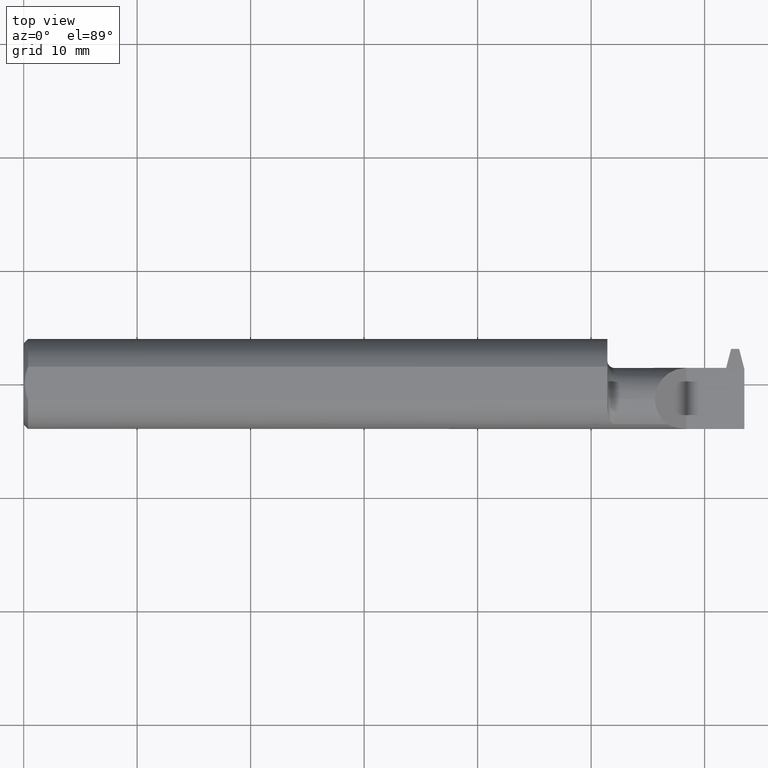
[diagram: clean part render]
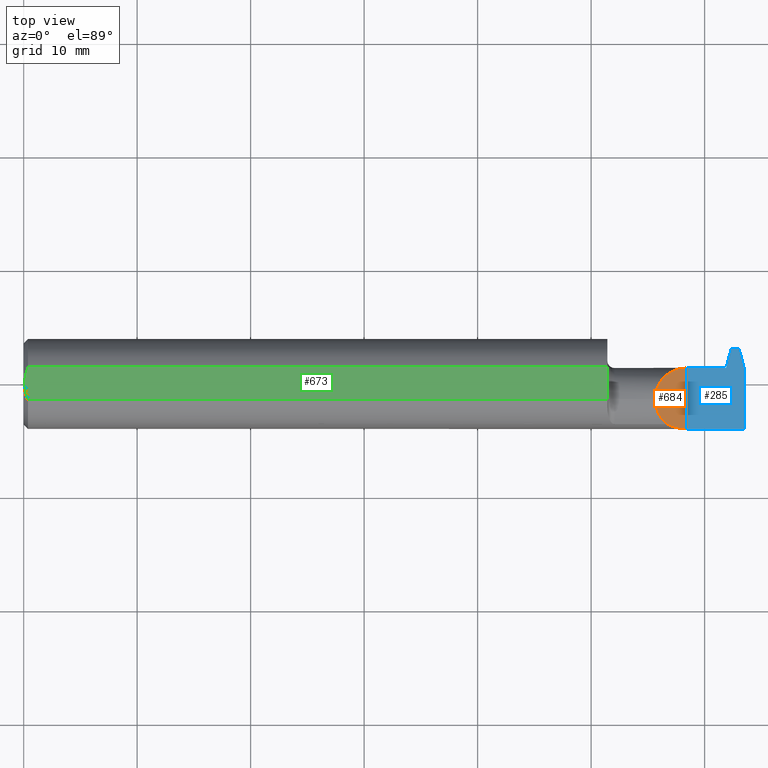
[diagram: same view with three faces highlighted in distinct colors, each labeled with its STEP entity id]
A machine part, top view with three faces highlighted in distinct colors.
Their STEP definitions:

[orange] entity #684 — the highlighted planar face has unit normal (-0.7071, 0, -0.7071).
#7 = CARTESIAN_POINT ( 'NONE',  ( 2.300000000000000266, -0.1560999999999999888, -3.918740332231607202E-17 ) ) ;
#19 = VECTOR ( 'NONE', #74, 39.37007874015748143 ) ;
#23 = ORIENTED_EDGE ( 'NONE', *, *, #715, .T. ) ;
#54 = PLANE ( 'NONE',  #821 ) ;
#74 = DIRECTION ( 'NONE',  ( -0.000000000000000000, 1.000000000000000000, -0.000000000000000000 ) ) ;
#92 = CARTESIAN_POINT ( 'NONE',  ( 2.235563491861040308, 0.05590000000000019259, 0.06443650813895937524 ) ) ;
#132 =( BOUNDED_CURVE ( )  B_SPLINE_CURVE ( 3, ( #790, #92, #868, #366 ),
 .UNSPECIFIED., .F., .F. ) 
 B_SPLINE_CURVE_WITH_KNOTS ( ( 4, 4 ),
 ( 4.712388980384687009, 6.283185307179586232 ),
 .UNSPECIFIED. ) 
 CURVE ( )  GEOMETRIC_REPRESENTATION_ITEM ( )  RATIONAL_B_SPLINE_CURVE ( ( 1.000000000000000000, 0.8047378541243643824, 0.8047378541243643824, 1.000000000000000000 ) ) 
 REPRESENTATION_ITEM ( '' )  );
#167 = ORIENTED_EDGE ( 'NONE', *, *, #817, .T. ) ;
#251 = CARTESIAN_POINT ( 'NONE',  ( 2.231824208644646479, -0.1404253234750460488, 0.06817579135535328794 ) ) ;
#296 = LINE ( 'NONE', #854, #19 ) ;
#299 = ORIENTED_EDGE ( 'NONE', *, *, #488, .F. ) ;
#359 = EDGE_CURVE ( 'NONE', #456, #857, #798, .T. ) ;
#366 = CARTESIAN_POINT ( 'NONE',  ( 2.189999999999999947, -0.05409999999999999531, 0.1100000000000000006 ) ) ;
#367 = CARTESIAN_POINT ( 'NONE',  ( 2.231824208644646479, -0.1404253234750460488, 0.06817579135535328794 ) ) ;
#369 = CARTESIAN_POINT ( 'NONE',  ( 2.189999999999999947, -0.05409999999999999531, 0.1100000000000000006 ) ) ;
#456 = VERTEX_POINT ( 'NONE', #599 ) ;
#488 = EDGE_CURVE ( 'NONE', #784, #857, #537, .T. ) ;
#491 = CARTESIAN_POINT ( 'NONE',  ( 2.189999999999999947, -0.08835990389925882371, 0.1100000000000000283 ) ) ;
#537 =( BOUNDED_CURVE ( )  B_SPLINE_CURVE ( 3, ( #672, #609, #804, #251 ),
 .UNSPECIFIED., .F., .F. ) 
 B_SPLINE_CURVE_WITH_KNOTS ( ( 4, 4 ),
 ( 4.712388980384687898, 5.164365393897303314 ),
 .UNSPECIFIED. ) 
 CURVE ( )  GEOMETRIC_REPRESENTATION_ITEM ( )  RATIONAL_B_SPLINE_CURVE ( ( 1.000000000000000000, 0.9830487706143840043, 0.9830487706143840043, 1.000000000000000000 ) ) 
 REPRESENTATION_ITEM ( '' )  );
#599 = CARTESIAN_POINT ( 'NONE',  ( 2.189999999999999947, -0.05409999999999999531, 0.1100000000000000006 ) ) ;
#609 = CARTESIAN_POINT ( 'NONE',  ( 2.276279741160605941, -0.1561000000000000165, 0.02372025883939345506 ) ) ;
#619 = FACE_OUTER_BOUND ( 'NONE', #641, .T. ) ;
#628 = CARTESIAN_POINT ( 'NONE',  ( 2.154900000000000038, 0.1000000000000000056, 0.1450999999999999790 ) ) ;
#641 = EDGE_LOOP ( 'NONE', ( #23, #167, #699, #299 ) ) ;
#660 = CARTESIAN_POINT ( 'NONE',  ( 2.204937869678032847, -0.1191917229287704216, 0.09506213032196700330 ) ) ;
#670 = CARTESIAN_POINT ( 'NONE',  ( 2.300000000000000266, 0.05590000000000006075, -3.918740332231607202E-17 ) ) ;
#672 = CARTESIAN_POINT ( 'NONE',  ( 2.300000000000000266, -0.1560999999999999888, -3.918740332231607202E-17 ) ) ;
#684 = ADVANCED_FACE ( 'NONE', ( #619 ), #54, .F. ) ;
#699 = ORIENTED_EDGE ( 'NONE', *, *, #359, .T. ) ;
#715 = EDGE_CURVE ( 'NONE', #784, #844, #296, .T. ) ;
#740 = CARTESIAN_POINT ( 'NONE',  ( 2.231824208644646479, -0.1404253234750460488, 0.06817579135535328794 ) ) ;
#760 = DIRECTION ( 'NONE',  ( -0.7071067811865461294, 0.000000000000000000, 0.7071067811865487940 ) ) ;
#784 = VERTEX_POINT ( 'NONE', #7 ) ;
#790 = CARTESIAN_POINT ( 'NONE',  ( 2.300000000000000266, 0.05590000000000006075, -3.918740332231607202E-17 ) ) ;
#798 =( BOUNDED_CURVE ( )  B_SPLINE_CURVE ( 3, ( #369, #491, #660, #367 ),
 .UNSPECIFIED., .F., .F. ) 
 B_SPLINE_CURVE_WITH_KNOTS ( ( 4, 4 ),
 ( 0.000000000000000000, 0.9023340896873542905 ),
 .UNSPECIFIED. ) 
 CURVE ( )  GEOMETRIC_REPRESENTATION_ITEM ( )  RATIONAL_B_SPLINE_CURVE ( ( 1.000000000000000000, 0.9332925766550594915, 0.9332925766550594915, 1.000000000000000000 ) ) 
 REPRESENTATION_ITEM ( '' )  );
#804 = CARTESIAN_POINT ( 'NONE',  ( 2.253162613644221768, -0.1507850122484572508, 0.04683738635577809617 ) ) ;
#817 = EDGE_CURVE ( 'NONE', #844, #456, #132, .T. ) ;
#821 = AXIS2_PLACEMENT_3D ( 'NONE', #628, #900, #760 ) ;
#844 = VERTEX_POINT ( 'NONE', #670 ) ;
#854 = CARTESIAN_POINT ( 'NONE',  ( 2.300000000000000266, 0.1650000000000000078, -3.918740332231607202E-17 ) ) ;
#857 = VERTEX_POINT ( 'NONE', #740 ) ;
#868 = CARTESIAN_POINT ( 'NONE',  ( 2.189999999999999947, 0.01033650813895969217, 0.1100000000000000283 ) ) ;
#900 = DIRECTION ( 'NONE',  ( -0.7071067811865489050, 0.000000000000000000, -0.7071067811865462405 ) ) ;

[blue] entity #285 — the highlighted planar face has unit normal (-0, 0, -1).
#7 = CARTESIAN_POINT ( 'NONE',  ( 2.300000000000000266, -0.1560999999999999888, -3.918740332231607202E-17 ) ) ;
#17 = ORIENTED_EDGE ( 'NONE', *, *, #268, .F. ) ;
#19 = VECTOR ( 'NONE', #74, 39.37007874015748143 ) ;
#40 = CARTESIAN_POINT ( 'NONE',  ( 2.024999999999999911, 0.05590000000000001218, -3.918740332231607202E-17 ) ) ;
#46 = ORIENTED_EDGE ( 'NONE', *, *, #917, .F. ) ;
#47 = EDGE_CURVE ( 'NONE', #844, #72, #321, .T. ) ;
#51 = VERTEX_POINT ( 'NONE', #888 ) ;
#72 = VERTEX_POINT ( 'NONE', #312 ) ;
#74 = DIRECTION ( 'NONE',  ( -0.000000000000000000, 1.000000000000000000, -0.000000000000000000 ) ) ;
#76 = DIRECTION ( 'NONE',  ( -0.000000000000000000, 0.000000000000000000, -1.000000000000000000 ) ) ;
#93 = CARTESIAN_POINT ( 'NONE',  ( 2.459689586855829280, 0.1438999999999999724, 0.000000000000000000 ) ) ;
#97 = CARTESIAN_POINT ( 'NONE',  ( 2.500000000000000000, -0.1560999999999999888, -3.918740332231607202E-17 ) ) ;
#108 = EDGE_CURVE ( 'NONE', #164, #739, #748, .T. ) ;
#117 = CARTESIAN_POINT ( 'NONE',  ( 2.300000000000000266, 0.1219000000000004108, -3.918740332231607202E-17 ) ) ;
#145 = VECTOR ( 'NONE', #557, 39.37007874015748854 ) ;
#159 = VECTOR ( 'NONE', #711, 39.37007874015748143 ) ;
#164 = VERTEX_POINT ( 'NONE', #637 ) ;
#176 = DIRECTION ( 'NONE',  ( 1.000000000000000000, 0.000000000000000000, 0.000000000000000000 ) ) ;
#182 = VERTEX_POINT ( 'NONE', #634 ) ;
#200 = LINE ( 'NONE', #260, #671 ) ;
#224 = LINE ( 'NONE', #93, #802 ) ;
#257 = VECTOR ( 'NONE', #176, 39.37007874015748143 ) ;
#260 = CARTESIAN_POINT ( 'NONE',  ( 2.436931239432511553, 0.05590000000000006075, 0.000000000000000000 ) ) ;
#268 = EDGE_CURVE ( 'NONE', #164, #617, #419, .T. ) ;
#285 = ADVANCED_FACE ( 'NONE', ( #757 ), #545, .F. ) ;
#296 = LINE ( 'NONE', #854, #19 ) ;
#297 = CARTESIAN_POINT ( 'NONE',  ( 2.500000000000000000, 0.1650000000000000078, -3.918740332231607202E-17 ) ) ;
#300 = CARTESIAN_POINT ( 'NONE',  ( 2.453999999999999737, 0.1219000000000000777, 0.000000000000000000 ) ) ;
#303 = ORIENTED_EDGE ( 'NONE', *, *, #715, .F. ) ;
#308 = DIRECTION ( 'NONE',  ( -1.000000000000000000, 2.265078523550430997E-15, 0.000000000000000000 ) ) ;
#312 = CARTESIAN_POINT ( 'NONE',  ( 2.416931239432511092, 0.05590000000000005381, 0.000000000000000000 ) ) ;
#321 = LINE ( 'NONE', #40, #257 ) ;
#348 = DIRECTION ( 'NONE',  ( -1.000000000000000000, 0.000000000000000000, 0.000000000000000000 ) ) ;
#350 = EDGE_CURVE ( 'NONE', #51, #617, #652, .T. ) ;
#361 = ORIENTED_EDGE ( 'NONE', *, *, #108, .T. ) ;
#386 = AXIS2_PLACEMENT_3D ( 'NONE', #470, #76, #348 ) ;
#417 = EDGE_CURVE ( 'NONE', #182, #739, #224, .T. ) ;
#419 = LINE ( 'NONE', #706, #145 ) ;
#457 = LINE ( 'NONE', #97, #779 ) ;
#467 = ORIENTED_EDGE ( 'NONE', *, *, #417, .F. ) ;
#470 = CARTESIAN_POINT ( 'NONE',  ( 2.300000000000000266, 0.1650000000000000078, -3.918740332231607202E-17 ) ) ;
#485 = DIRECTION ( 'NONE',  ( 1.000000000000000000, 4.268512490100399076E-16, -0.000000000000000000 ) ) ;
#545 = PLANE ( 'NONE',  #386 ) ;
#557 = DIRECTION ( 'NONE',  ( 0.2503800040544402195, -0.9681476403781079654, 0.000000000000000000 ) ) ;
#567 = VECTOR ( 'NONE', #308, 39.37007874015748143 ) ;
#569 = DIRECTION ( 'NONE',  ( 0.2503800040544368333, 0.9681476403781088536, -0.000000000000000000 ) ) ;
#586 = EDGE_CURVE ( 'NONE', #72, #182, #200, .T. ) ;
#592 = ORIENTED_EDGE ( 'NONE', *, *, #586, .F. ) ;
#617 = VERTEX_POINT ( 'NONE', #633 ) ;
#633 = CARTESIAN_POINT ( 'NONE',  ( 2.500000000000000000, 0.05229916429182325521, 0.000000000000000000 ) ) ;
#634 = CARTESIAN_POINT ( 'NONE',  ( 2.436931239432511553, 0.05590000000000006075, 0.000000000000000000 ) ) ;
#637 = CARTESIAN_POINT ( 'NONE',  ( 2.482000000000000650, 0.1219000000000000083, 0.000000000000000000 ) ) ;
#647 = ORIENTED_EDGE ( 'NONE', *, *, #350, .T. ) ;
#652 = LINE ( 'NONE', #297, #159 ) ;
#670 = CARTESIAN_POINT ( 'NONE',  ( 2.300000000000000266, 0.05590000000000006075, -3.918740332231607202E-17 ) ) ;
#671 = VECTOR ( 'NONE', #485, 39.37007874015748143 ) ;
#677 = DIRECTION ( 'NONE',  ( -1.000000000000000000, -0.000000000000000000, -0.000000000000000000 ) ) ;
#687 = ORIENTED_EDGE ( 'NONE', *, *, #47, .F. ) ;
#706 = CARTESIAN_POINT ( 'NONE',  ( 2.476310413144170663, 0.1438999999999999724, 0.000000000000000000 ) ) ;
#711 = DIRECTION ( 'NONE',  ( -0.000000000000000000, 1.000000000000000000, -0.000000000000000000 ) ) ;
#715 = EDGE_CURVE ( 'NONE', #784, #844, #296, .T. ) ;
#739 = VERTEX_POINT ( 'NONE', #300 ) ;
#748 = LINE ( 'NONE', #117, #567 ) ;
#757 = FACE_OUTER_BOUND ( 'NONE', #792, .T. ) ;
#779 = VECTOR ( 'NONE', #677, 39.37007874015748143 ) ;
#784 = VERTEX_POINT ( 'NONE', #7 ) ;
#792 = EDGE_LOOP ( 'NONE', ( #361, #467, #592, #687, #303, #46, #647, #17 ) ) ;
#802 = VECTOR ( 'NONE', #569, 39.37007874015748854 ) ;
#844 = VERTEX_POINT ( 'NONE', #670 ) ;
#854 = CARTESIAN_POINT ( 'NONE',  ( 2.300000000000000266, 0.1650000000000000078, -3.918740332231607202E-17 ) ) ;
#888 = CARTESIAN_POINT ( 'NONE',  ( 2.500000000000000000, -0.1561000000000000165, -3.918740332231607202E-17 ) ) ;
#917 = EDGE_CURVE ( 'NONE', #51, #784, #457, .T. ) ;

[green] entity #673 — the highlighted planar face has unit normal (-0, 0, -1).
#12 = CARTESIAN_POINT ( 'NONE',  ( 0.01499999999999970281, 0.05756040305626777126, 0.1450999999999999790 ) ) ;
#36 = CARTESIAN_POINT ( 'NONE',  ( 0.003999999999999595893, 1.377970445471898428E-17, 0.1450999999999999790 ) ) ;
#57 = EDGE_CURVE ( 'NONE', #320, #712, #261, .T. ) ;
#77 = ORIENTED_EDGE ( 'NONE', *, *, #874, .F. ) ;
#123 = DIRECTION ( 'NONE',  ( -1.000000000000000000, 0.000000000000000000, 0.000000000000000000 ) ) ;
#161 = CARTESIAN_POINT ( 'NONE',  ( 2.500000000000000000, -0.05756040305626777126, 0.1450999999999999790 ) ) ;
#171 = CARTESIAN_POINT ( 'NONE',  ( 0.003999999999996986001, -0.009882491626910055310, 0.1450999999999999790 ) ) ;
#174 = ORIENTED_EDGE ( 'NONE', *, *, #57, .F. ) ;
#183 = AXIS2_PLACEMENT_3D ( 'NONE', #543, #270, #123 ) ;
#189 = CARTESIAN_POINT ( 'NONE',  ( 0.003999999999999595893, 1.377970445471898428E-17, 0.1450999999999999790 ) ) ;
#192 = ORIENTED_EDGE ( 'NONE', *, *, #867, .T. ) ;
#217 = VECTOR ( 'NONE', #497, 39.37007874015748143 ) ;
#218 = CARTESIAN_POINT ( 'NONE',  ( 0.005017455651907636906, 0.01961184984831247299, 0.1450999999999999790 ) ) ;
#226 = CARTESIAN_POINT ( 'NONE',  ( 0.003999999999997044114, 0.009886684785571414960, 0.1450999999999999512 ) ) ;
#252 = DIRECTION ( 'NONE',  ( 1.000000000000000000, 0.000000000000000000, 0.000000000000000000 ) ) ;
#261 = LINE ( 'NONE', #824, #615 ) ;
#266 = B_SPLINE_CURVE_WITH_KNOTS ( 'NONE', 3,
 ( #36, #171, #317, #532, #603, #310 ),
 .UNSPECIFIED., .F., .F.,
 ( 4, 2, 4 ),
 ( 0.004431269906162800011, 0.005173847132308577804, 0.005916424358454355596 ),
 .UNSPECIFIED. ) ;
#267 = ORIENTED_EDGE ( 'NONE', *, *, #694, .T. ) ;
#270 = DIRECTION ( 'NONE',  ( -0.000000000000000000, 0.000000000000000000, -1.000000000000000000 ) ) ;
#286 = CARTESIAN_POINT ( 'NONE',  ( 2.024999999999999911, 0.05756040305626777126, 0.1450999999999999790 ) ) ;
#310 = CARTESIAN_POINT ( 'NONE',  ( 0.01499999999999970107, -0.05756040305626777126, 0.1450999999999999790 ) ) ;
#317 = CARTESIAN_POINT ( 'NONE',  ( 0.005042865002153306721, -0.01979865541750971611, 0.1451000000000000068 ) ) ;
#320 = VERTEX_POINT ( 'NONE', #12 ) ;
#346 = VERTEX_POINT ( 'NONE', #778 ) ;
#465 = PLANE ( 'NONE',  #183 ) ;
#471 = VERTEX_POINT ( 'NONE', #816 ) ;
#477 = VECTOR ( 'NONE', #809, 39.37007874015748143 ) ;
#490 = CARTESIAN_POINT ( 'NONE',  ( 0.01157928343552837129, 0.04828364633877424428, 0.1451000000000000068 ) ) ;
#497 = DIRECTION ( 'NONE',  ( -1.000000000000000000, -0.000000000000000000, -0.000000000000000000 ) ) ;
#516 = LINE ( 'NONE', #886, #477 ) ;
#532 = CARTESIAN_POINT ( 'NONE',  ( 0.008847869984959717479, -0.03896939155709343294, 0.1450999999999999512 ) ) ;
#543 = CARTESIAN_POINT ( 'NONE',  ( 0.000000000000000000, 0.1000000000000000056, 0.1450999999999999790 ) ) ;
#549 = CARTESIAN_POINT ( 'NONE',  ( 0.01499999999999970281, 0.05756040305626777126, 0.1450999999999999790 ) ) ;
#564 = LINE ( 'NONE', #161, #217 ) ;
#580 = ORIENTED_EDGE ( 'NONE', *, *, #781, .F. ) ;
#603 = CARTESIAN_POINT ( 'NONE',  ( 0.01160171645209438947, -0.04834448319362431162, 0.1450999999999999790 ) ) ;
#615 = VECTOR ( 'NONE', #252, 39.37007874015748143 ) ;
#623 = VERTEX_POINT ( 'NONE', #189 ) ;
#651 = CARTESIAN_POINT ( 'NONE',  ( 0.008799784310863792772, 0.03878477980766483618, 0.1451000000000000068 ) ) ;
#655 = CARTESIAN_POINT ( 'NONE',  ( 0.003999999999999595893, 1.377970445471898428E-17, 0.1450999999999999790 ) ) ;
#673 = ADVANCED_FACE ( 'NONE', ( #688 ), #465, .F. ) ;
#688 = FACE_OUTER_BOUND ( 'NONE', #825, .T. ) ;
#694 = EDGE_CURVE ( 'NONE', #320, #623, #853, .T. ) ;
#712 = VERTEX_POINT ( 'NONE', #286 ) ;
#778 = CARTESIAN_POINT ( 'NONE',  ( 0.01499999999999970107, -0.05756040305626777126, 0.1450999999999999790 ) ) ;
#781 = EDGE_CURVE ( 'NONE', #471, #346, #564, .T. ) ;
#809 = DIRECTION ( 'NONE',  ( 0.000000000000000000, -1.000000000000000000, 0.000000000000000000 ) ) ;
#816 = CARTESIAN_POINT ( 'NONE',  ( 2.024999999999999911, -0.05756040305626777820, 0.1450999999999999790 ) ) ;
#824 = CARTESIAN_POINT ( 'NONE',  ( 2.500000000000000000, 0.05756040305626777126, 0.1450999999999999790 ) ) ;
#825 = EDGE_LOOP ( 'NONE', ( #77, #174, #267, #192, #580 ) ) ;
#853 = B_SPLINE_CURVE_WITH_KNOTS ( 'NONE', 3,
 ( #549, #490, #651, #218, #226, #655 ),
 .UNSPECIFIED., .F., .F.,
 ( 4, 2, 4 ),
 ( 0.002945485300212740808, 0.003688377603187770627, 0.004431269906162800011 ),
 .UNSPECIFIED. ) ;
#867 = EDGE_CURVE ( 'NONE', #623, #346, #266, .T. ) ;
#874 = EDGE_CURVE ( 'NONE', #712, #471, #516, .T. ) ;
#886 = CARTESIAN_POINT ( 'NONE',  ( 2.024999999999999911, 0.1000000000000000056, 0.1450999999999999790 ) ) ;